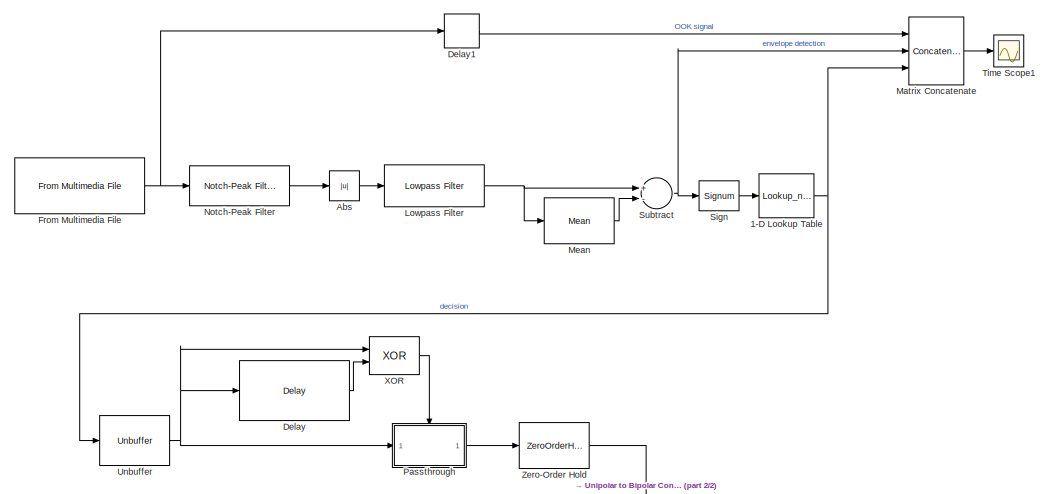
[diagram: root canvas - part 1/2, top center region]
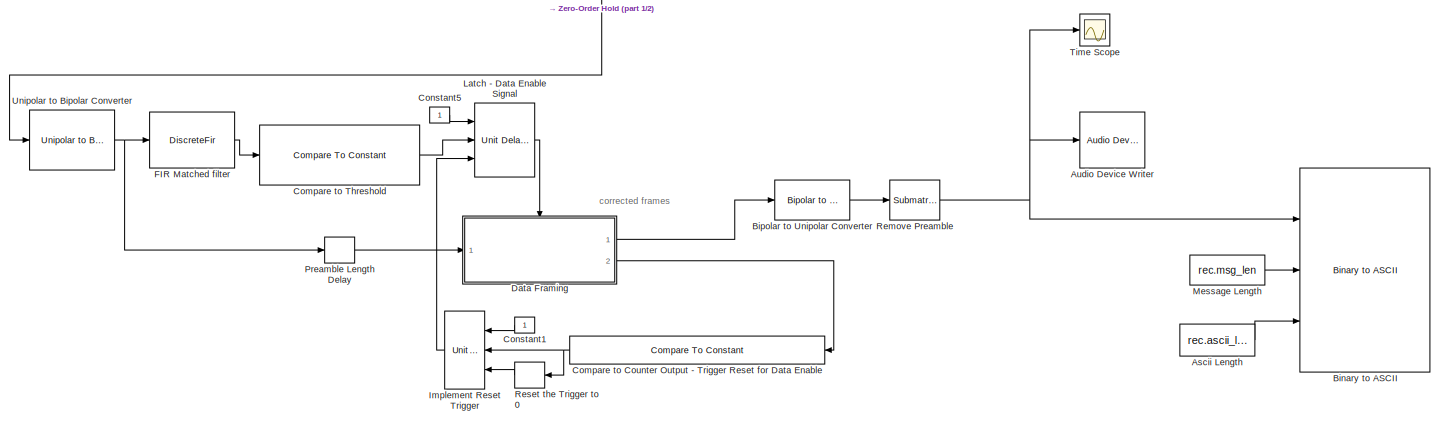
[diagram: root canvas - part 2/2, full width, bottom band]
MODEL slx_7d74c5acae0b
KIND model
CONFIG AbsTol = auto
CONFIG EnableMultiTasking = off
CONFIG FixedStep = auto
CONFIG MaxStep = auto
CONFIG MinStep = auto
CONFIG RelTol = 1e-3
CONFIG SampleTimeConstraint = Unconstrained
CONFIG Solver = VariableStepAuto
CONFIG SolverName = VariableStepAuto
CONFIG StartTime = 0.0
CONFIG StopTime = 10.0
WORKSPACE source: MAT-file member
WORKSPACE MCOS: class17 (value not decoded)
BLOCK [Lookup_n-D] 1-D Lookup Table
  BreakpointsForDimension1 = [-1,0,1]
  InternalRulePriority = Speed
  NumberOfTableDimensions = 1
  Ports = [1, 1]
  RndMeth = Simplest
  Table = [0,0,1]
BLOCK [Abs] Abs
  SaturateOnIntegerOverflow = off
BLOCK [Constant] Ascii Length
  FramePeriod = 4096/240e3
  OutDataTypeStr = single
  Value = rec.ascii_len
  VectorParams1D = off
BLOCK [Reference] Audio Device Writer  REF=dspsnks4/Audio Device
Writer
  Ports = [1]
  SourceBlock = dspsnks4/Audio Device\nWriter
  SourceProductBaseCode = DS
  SourceProductName = DSP System Toolbox
  SourceType = Audio Device Writer
BLOCK [Reference] Binary to ASCII  REF=rtlsdr_book_library/Data Comms  (lib defined in slx_12414fe83126, slx_a1558d2e1022)
Sources and Sinks/ASCII Decoding/Binary to ASCII
  Ports = [3]
  SourceBlock = rtlsdr_book_library/Data Comms\nSources and Sinks/ASCII Decoding/Binary to ASCII
  SourceProductName = RTL-SDR Book Library
BLOCK [Reference] Bipolar to Unipolar Converter  REF=commutil2/Bipolar to
Unipolar
Converter
  Ports = [1, 1]
  SourceBlock = commutil2/Bipolar to\nUnipolar\nConverter
  SourceProductBaseCode = CM
  SourceProductName = Communications System Toolbox
  SourceType = Bipolar to Unipolar Converter
BLOCK [Reference] Compare to Counter Output - Trigger Reset for Data Enable  REF=simulink/Logic and Bit
Operations/Compare
To Constant
  Ports = [1, 1]
  SourceBlock = simulink/Logic and Bit\nOperations/Compare\nTo Constant
  SourceProductBaseCode = SL
  SourceProductName = Simulink
  SourceType = Compare To Constant
BLOCK [Reference] Compare to Threshold  REF=simulink/Logic and Bit
Operations/Compare
To Constant
  Ports = [1, 1]
  SourceBlock = simulink/Logic and Bit\nOperations/Compare\nTo Constant
  SourceProductBaseCode = SL
  SourceProductName = Simulink
  SourceType = Compare To Constant
BLOCK [Constant] Constant1
BLOCK [Constant] Constant5
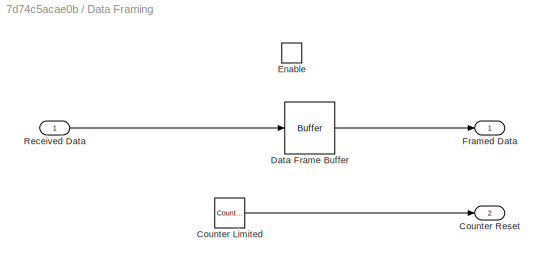
BLOCK [SubSystem] Data Framing
  Ports = [1, 2, 1]
  RequestExecContextInheritance = off
BLOCK [Reference] Data Framing/Counter Limited  REF=simulink/Sources/Counter
Limited
  Ports = [0, 1]
  SourceBlock = simulink/Sources/Counter\nLimited
  SourceProductBaseCode = SL
  SourceProductName = Simulink
  SourceType = Counter Limited
BLOCK [Outport] Data Framing/Counter Reset
  IconDisplay = Port number
  Port = 2
BLOCK [Buffer] Data Framing/Data Frame Buffer
  N = rec.master_frame_len-rec.frame_pad_len
BLOCK [EnablePort] Data Framing/Enable
  Ports = []
BLOCK [Outport] Data Framing/Framed Data
  IconDisplay = Port number
BLOCK [Inport] Data Framing/Received Data
  IconDisplay = Port number
BLOCK [Delay] Delay
  DelayLength = 1
  InitialCondition = 0
  InputPortMap = u0
  Ports = [1, 1]
BLOCK [Delay] Delay1
  DelayLength = 12
  InputPortMap = u0
  InputProcessing = Columns as channels (frame based)
  Ports = [1, 1]
BLOCK [DiscreteFir] FIR Matched filter
  Coefficients = rec.filter_coeff
  InputPortMap = u0
  InputProcessing = Columns as channels (frame based)
  OutputPortMap = o0
  Ports = [1, 1]
BLOCK [Reference] From Multimedia File  REF=dspvision/From Multimedia File
  Ports = [0, 1]
  SourceBlock = dspvision/From Multimedia File
  SourceProductBaseCode = VP
  SourceProductName = Computer Vision System Toolbox
  SourceType = From Multimedia File
BLOCK [Reference] Implement Reset Trigger  REF=simulink_need_slupdate/Unit Delay
Enabled
Resettable
  Ports = [3, 1]
  SourceBlock = simulink_need_slupdate/Unit Delay\nEnabled\nResettable
  SourceProductBaseCode = SL
  SourceProductName = Simulink
  SourceType = Unit Delay Enabled Resettable
BLOCK [Reference] Latch - Data Enable Signal  REF=simulink_need_slupdate/Unit Delay
Enabled
Resettable
  Ports = [3, 1]
  SourceBlock = simulink_need_slupdate/Unit Delay\nEnabled\nResettable
  SourceProductBaseCode = SL
  SourceProductName = Simulink
  SourceType = Unit Delay Enabled Resettable
BLOCK [Reference] Lowpass Filter  REF=dspfdesign/Lowpass Filter
  Ports = [1, 1]
  SourceBlock = dspfdesign/Lowpass Filter
  SourceProductBaseCode = DS
  SourceProductName = DSP System Toolbox
  SourceType = dsp.LowpassFilter
BLOCK [Concatenate] Matrix Concatenate
  ConcatenateDimension = 2
  Mode = Multidimensional array
  NumInputs = 3
  Ports = [3, 1]
BLOCK [Reference] Mean  REF=dspstat3/Mean
  Ports = [1, 1]
  SourceBlock = dspstat3/Mean
  SourceProductBaseCode = DS
  SourceProductName = DSP System Toolbox
  SourceType = Mean
  UserDataPersistent = on
BLOCK [Constant] Message Length
  FramePeriod = -1
  OutDataTypeStr = single
  Value = rec.msg_len
  VectorParams1D = off
BLOCK [Reference] Notch-Peak Filter  REF=dspfdesign/Notch-Peak Filter
  Ports = [1, 1]
  SourceBlock = dspfdesign/Notch-Peak Filter
  SourceProductBaseCode = DS
  SourceProductName = DSP System Toolbox
  SourceType = dsp.simulink.NotchPeakFilter
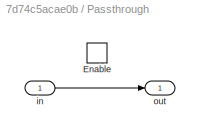
BLOCK [SubSystem] Passthrough
  Ports = [1, 1, 1]
  RequestExecContextInheritance = off
BLOCK [EnablePort] Passthrough/Enable
  Ports = []
BLOCK [Inport] Passthrough/in
  IconDisplay = Port number
BLOCK [Outport] Passthrough/out
  IconDisplay = Port number
BLOCK [Delay] Preamble Length Delay
  DelayLength = rec.preamble_len
  DelayLengthUpperLimit = 10000
  InitialCondition = 1
  InputPortMap = u0
  Ports = [1, 1]
BLOCK [Reference] Remove Preamble  REF=dspmtrx3/Submatrix
  Ports = [1, 1]
  SourceBlock = dspmtrx3/Submatrix
  SourceProductBaseCode = DS
  SourceProductName = DSP System Toolbox
  SourceType = Submatrix
BLOCK [Delay] Reset the Trigger to 0
  DelayLengthUpperLimit = 10000
  InitialCondition = 0
  InputPortMap = u0
  Ports = [1, 1]
BLOCK [Signum] Sign
  ZeroCross = off
BLOCK [Sum] Subtract
  InputSameDT = off
  Inputs = +-
  OutDataTypeStr = Inherit: Inherit via internal rule
  Ports = [2, 1]
  SaturateOnIntegerOverflow = off
BLOCK [Scope] Time Scope
  DefaultConfigurationName = spbscopes.TimeScopeBlockCfg
  Floating = off
  NumInputPorts = 1
  Ports = [1]
  ScopeSpecificationString = spbscopes.TimeScopeBlockCfg('CurrentConfiguration', extmgr.ConfigurationSet(extmgr.Configuration('Core','General UI',true,'FigureColor',[0.156862745098039 0.156862745098039 0.156862745098039]),extmgr.Configuration('Core','Source UI',true),extmgr.Configuration('Sources','WiredSimulink',true),extmgr.Configuration('Visuals','Time Domain',true,'DisplayPropertyDefaults',struct('MinYLimReal','-0.07667',...<+1449ch>
  UserDataPersistent = on
BLOCK [Scope] Time Scope1
  DefaultConfigurationName = spbscopes.TimeScopeBlockCfg
  Floating = off
  NumInputPorts = 1
  Ports = [1]
  ScopeSpecificationString = spbscopes.TimeScopeBlockCfg('CurrentConfiguration', extmgr.ConfigurationSet(extmgr.Configuration('Core','General UI',true,'ShowStatusbar',false,'FigureColor',[0.941176470588235 0.941176470588235 0.941176470588235]),extmgr.Configuration('Core','Source UI',true),extmgr.Configuration('Sources','WiredSimulink',true,'PointsPerSignal',50000,'DataLoggingVariableName','ScopeData1'),extmgr.Configuration('V...<+2694ch>
  StartFcn = startfcn_time_scope
  UserDataPersistent = on
BLOCK [Unbuffer] Unbuffer
  Ports = [1, 1]
BLOCK [Reference] Unipolar to Bipolar Converter  REF=commutil2/Unipolar to
Bipolar
Converter
  Ports = [1, 1]
  SourceBlock = commutil2/Unipolar to\nBipolar\nConverter
  SourceProductBaseCode = CM
  SourceProductName = Communications System Toolbox
  SourceType = Unipolar to Bipolar Converter
BLOCK [Logic] XOR
  AllPortsSameDT = off
  IconShape = distinctive
  Operator = XOR
  OutDataTypeStr = boolean
  Ports = [2, 1]
BLOCK [ZeroOrderHold] Zero-Order Hold
  SampleTime = 1/3e3
ANNOTATION (root): corrected frames
NET 1-D Lookup Table:1 -> Matrix Concatenate:3, Unbuffer:1
LINE Abs:1 -> Lowpass Filter:1
LINE Ascii Length:1 -> Binary to ASCII:3
LINE Bipolar to Unipolar Converter:1 -> Remove Preamble:1
NET Compare to Counter Output - Trigger Reset for Data Enable:1 -> Implement Reset Trigger:2, Reset the Trigger to 0:1
LINE Compare to Threshold:1 -> Latch - Data Enable Signal:2
LINE Constant1:1 -> Implement Reset Trigger:1
LINE Constant5:1 -> Latch - Data Enable Signal:1
LINE Data Framing/Counter Limited:1 -> Data Framing/Counter Reset:1
LINE Data Framing/Data Frame Buffer:1 -> Data Framing/Framed Data:1
LINE Data Framing/Received Data:1 -> Data Framing/Data Frame Buffer:1
LINE Data Framing:1 -> Bipolar to Unipolar Converter:1
LINE Data Framing:2 -> Compare to Counter Output - Trigger Reset for Data Enable:1
LINE Delay1:1 -> Matrix Concatenate:1
LINE Delay:1 -> XOR:2
LINE FIR Matched filter:1 -> Compare to Threshold:1
NET From Multimedia File:1 -> Delay1:1, Notch-Peak Filter:1
LINE Implement Reset Trigger:1 -> Latch - Data Enable Signal:3
LINE Latch - Data Enable Signal:1 -> Data Framing:enable
NET Lowpass Filter:1 -> Mean:1, Subtract:1
LINE Matrix Concatenate:1 -> Time Scope1:1
LINE Mean:1 -> Subtract:2
LINE Message Length:1 -> Binary to ASCII:2
LINE Notch-Peak Filter:1 -> Abs:1
LINE Passthrough/in:1 -> Passthrough/out:1
LINE Passthrough:1 -> Zero-Order Hold:1
LINE Preamble Length Delay:1 -> Data Framing:1
NET Remove Preamble:1 -> Audio Device Writer:1, Binary to ASCII:1, Time Scope:1
LINE Reset the Trigger to 0:1 -> Implement Reset Trigger:3
LINE Sign:1 -> 1-D Lookup Table:1
NET Subtract:1 -> Matrix Concatenate:2, Sign:1
NET Unbuffer:1 -> Delay:1, Passthrough:1, XOR:1
NET Unipolar to Bipolar Converter:1 -> FIR Matched filter:1, Preamble Length Delay:1
LINE XOR:1 -> Passthrough:enable
LINE Zero-Order Hold:1 -> Unipolar to Bipolar Converter:1
note: NET lines group one-source signal fan-out (src -> all destinations, sorted); 1:1 wires keep LINE
